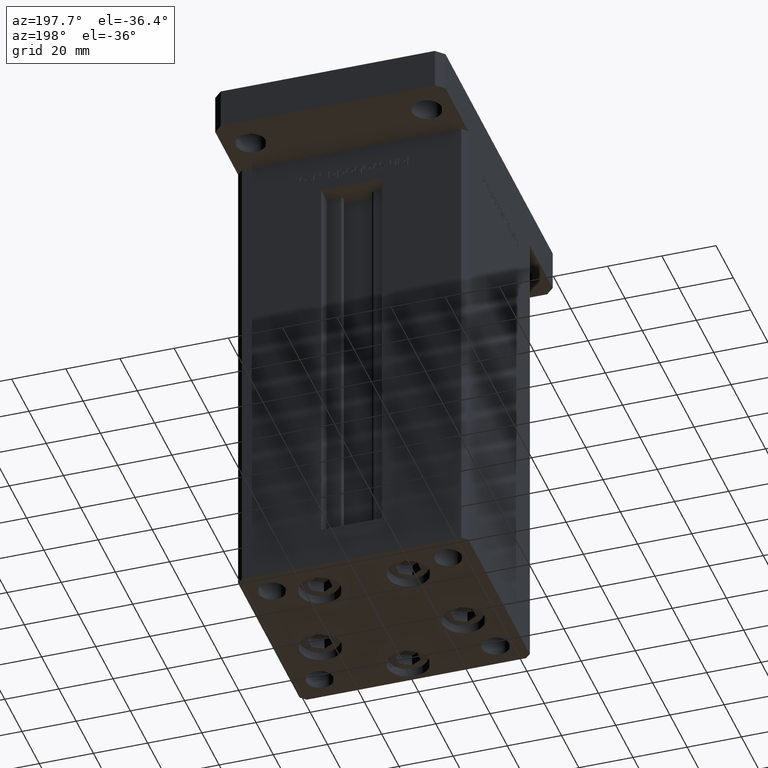
[diagram: clean part render]
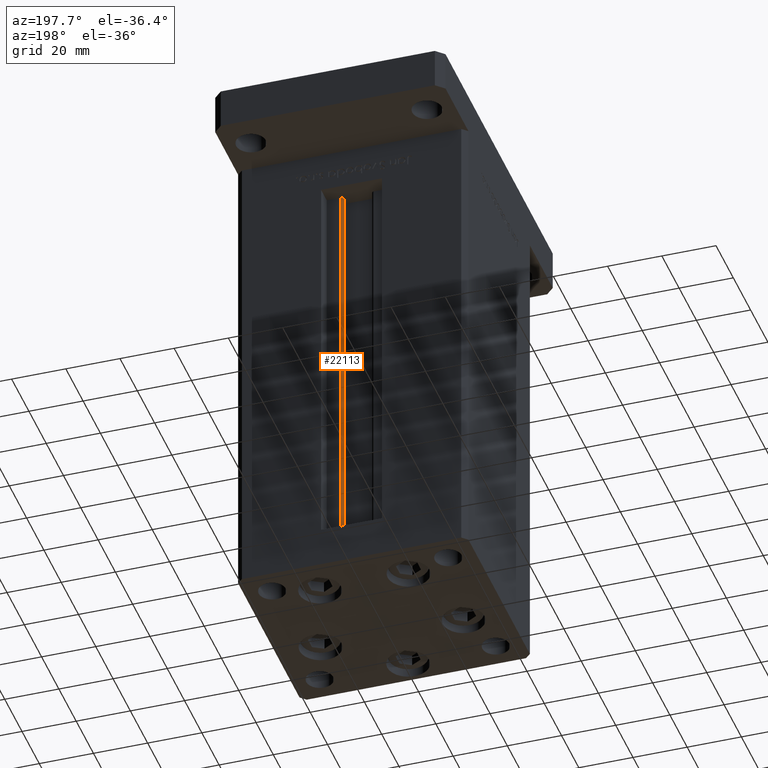
[diagram: same view with one face highlighted and labeled with its STEP entity id]
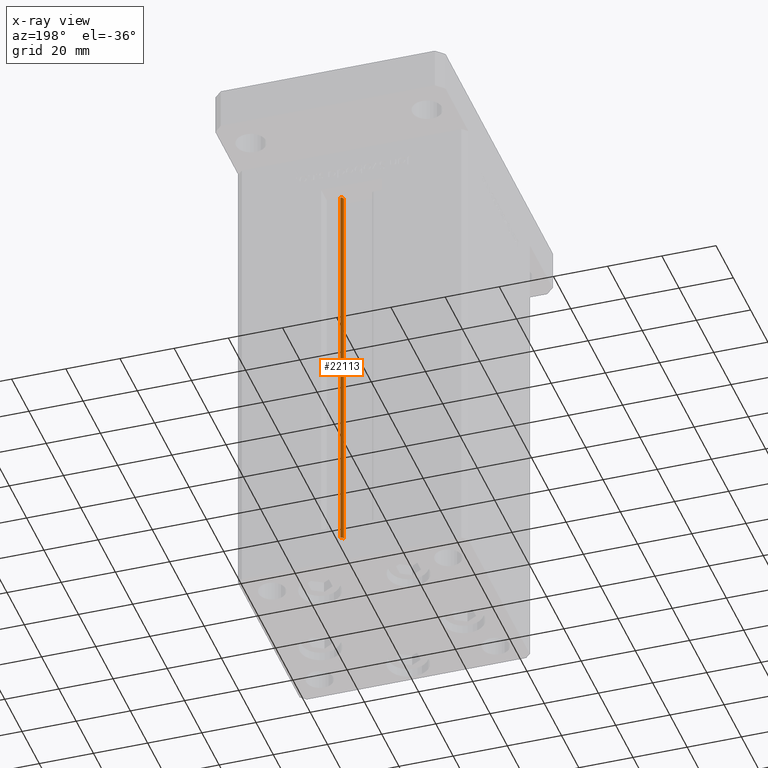
[diagram: x-ray of the same camera — body ghosted, the highlighted face saturated]
A machine part, auxiliary view. The second image highlights one B-rep face of the part: STEP entity #22113.
The next image is the same camera in x-ray: the body ghosted, the highlighted face saturated — about 0% of this face is hidden behind the body in this view.
In plain terms, the highlighted cylindrical surface (edge-blend (fillet) strip) has radius 0.9333 mm, axis along (0, 0, 1).
Its self-contained STEP definition (entity closure, byte-faithful):
#4452 = VERTEX_POINT ( 'NONE', #49194 ) ;
#5014 = EDGE_CURVE ( 'NONE', #18247, #22488, #28996, .T. ) ;
#5938 = DIRECTION ( 'NONE',  ( 1.000000000000000000, 0.000000000000000000, 0.000000000000000000 ) ) ;
#6345 = CARTESIAN_POINT ( 'NONE',  ( 5.375042956467943611, 29.59999999999899245, 0.000000000000000000 ) ) ;
#6472 = CYLINDRICAL_SURFACE ( 'NONE', #25671, 0.9333333333340015914 ) ;
#6517 = ORIENTED_EDGE ( 'NONE', *, *, #38418, .T. ) ;
#10022 = CARTESIAN_POINT ( 'NONE',  ( 6.183333333333999704, 30.06666666666599141, 0.000000000000000000 ) ) ;
#11053 = CIRCLE ( 'NONE', #12807, 0.9333333333340015914 ) ;
#12255 = ORIENTED_EDGE ( 'NONE', *, *, #5014, .F. ) ;
#12759 = DIRECTION ( 'NONE',  ( 0.000000000000000000, 0.000000000000000000, -1.000000000000000000 ) ) ;
#12807 = AXIS2_PLACEMENT_3D ( 'NONE', #43381, #39066, #27092 ) ;
#16839 = DIRECTION ( 'NONE',  ( 1.000000000000000000, 0.000000000000000000, 0.000000000000000000 ) ) ;
#18068 = CARTESIAN_POINT ( 'NONE',  ( 5.375042956467943611, 29.59999999999899245, 0.000000000000000000 ) ) ;
#18247 = VERTEX_POINT ( 'NONE', #25848 ) ;
#18974 = DIRECTION ( 'NONE',  ( -0.000000000000000000, -0.000000000000000000, 1.000000000000000000 ) ) ;
#19586 = VECTOR ( 'NONE', #39489, 1000.000000000000000 ) ;
#20262 = ORIENTED_EDGE ( 'NONE', *, *, #53511, .F. ) ;
#22113 = ADVANCED_FACE ( 'NONE', ( #26581 ), #6472, .T. ) ;
#22488 = VERTEX_POINT ( 'NONE', #52538 ) ;
#22656 = EDGE_CURVE ( 'NONE', #36214, #4452, #43536, .T. ) ;
#23760 = CIRCLE ( 'NONE', #50595, 0.9333333333340015914 ) ;
#24659 = DIRECTION ( 'NONE',  ( -0.000000000000000000, -0.000000000000000000, 1.000000000000000000 ) ) ;
#24994 = CARTESIAN_POINT ( 'NONE',  ( 6.183333333333999704, 30.06666666666599141, 148.5000000000000000 ) ) ;
#25671 = AXIS2_PLACEMENT_3D ( 'NONE', #10022, #18974, #5938 ) ;
#25848 = CARTESIAN_POINT ( 'NONE',  ( 6.183333333333999704, 30.99999999999999289, 0.000000000000000000 ) ) ;
#26581 = FACE_OUTER_BOUND ( 'NONE', #52731, .T. ) ;
#27092 = DIRECTION ( 'NONE',  ( 1.000000000000000000, 0.000000000000000000, 0.000000000000000000 ) ) ;
#28996 = LINE ( 'NONE', #36079, #52101 ) ;
#36079 = CARTESIAN_POINT ( 'NONE',  ( 6.183333333333999704, 30.99999999999999289, 0.000000000000000000 ) ) ;
#36214 = VERTEX_POINT ( 'NONE', #18068 ) ;
#38418 = EDGE_CURVE ( 'NONE', #4452, #22488, #23760, .T. ) ;
#39066 = DIRECTION ( 'NONE',  ( -0.000000000000000000, -0.000000000000000000, -1.000000000000000000 ) ) ;
#39489 = DIRECTION ( 'NONE',  ( -0.000000000000000000, -0.000000000000000000, 1.000000000000000000 ) ) ;
#43381 = CARTESIAN_POINT ( 'NONE',  ( 6.183333333333999704, 30.06666666666599141, 0.000000000000000000 ) ) ;
#43536 = LINE ( 'NONE', #6345, #19586 ) ;
#49194 = CARTESIAN_POINT ( 'NONE',  ( 5.375042956467944499, 29.59999999999899245, 148.5000000000000000 ) ) ;
#50595 = AXIS2_PLACEMENT_3D ( 'NONE', #24994, #12759, #16839 ) ;
#52101 = VECTOR ( 'NONE', #24659, 1000.000000000000000 ) ;
#52538 = CARTESIAN_POINT ( 'NONE',  ( 6.183333333333999704, 30.99999999999999289, 148.5000000000000000 ) ) ;
#52731 = EDGE_LOOP ( 'NONE', ( #12255, #20262, #52798, #6517 ) ) ;
#52798 = ORIENTED_EDGE ( 'NONE', *, *, #22656, .T. ) ;
#53511 = EDGE_CURVE ( 'NONE', #36214, #18247, #11053, .T. ) ;